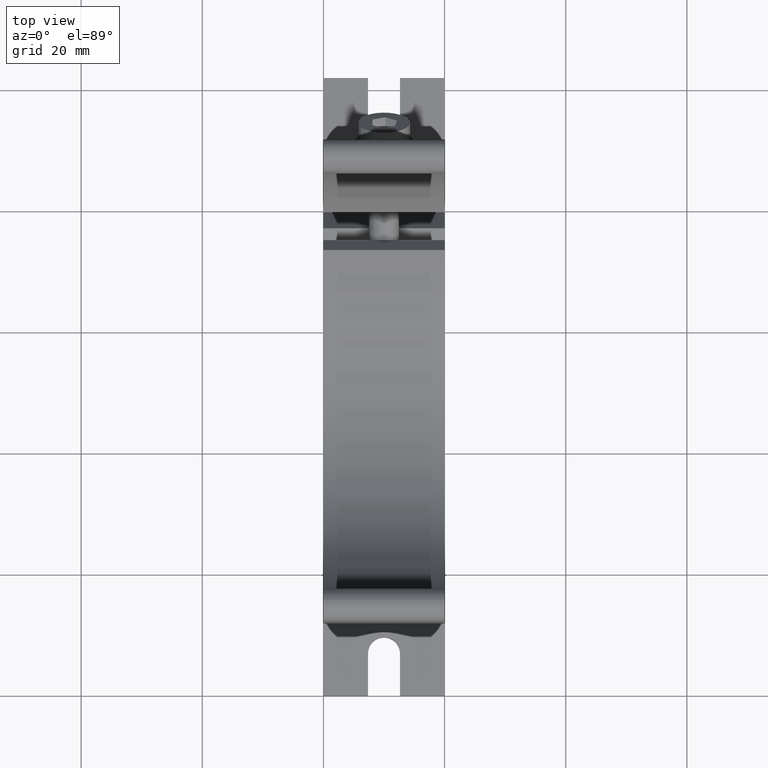
[diagram: clean part render]
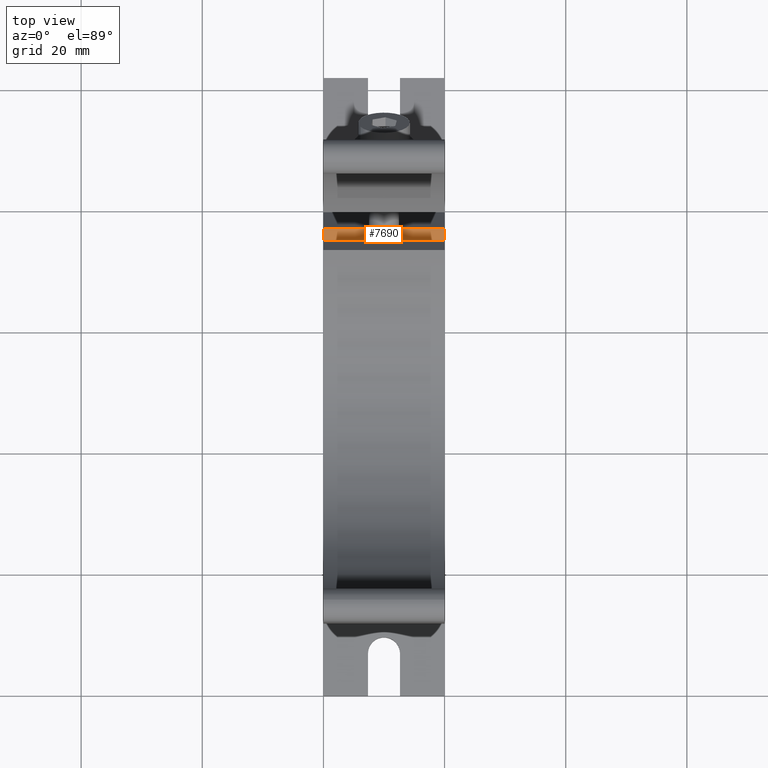
[diagram: same view with one face highlighted and labeled with its STEP entity id]
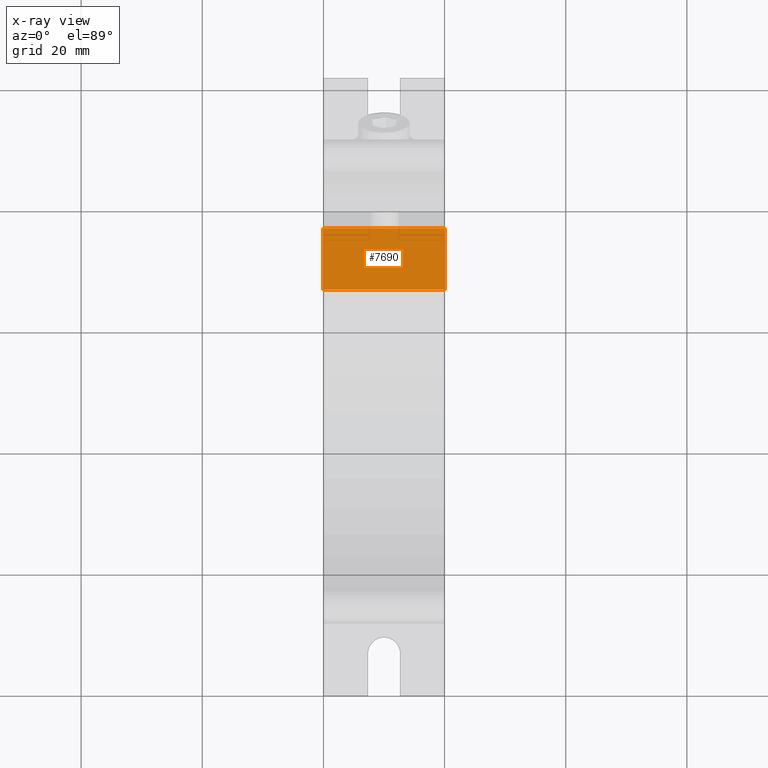
[diagram: x-ray of the same camera — body ghosted, the highlighted face saturated]
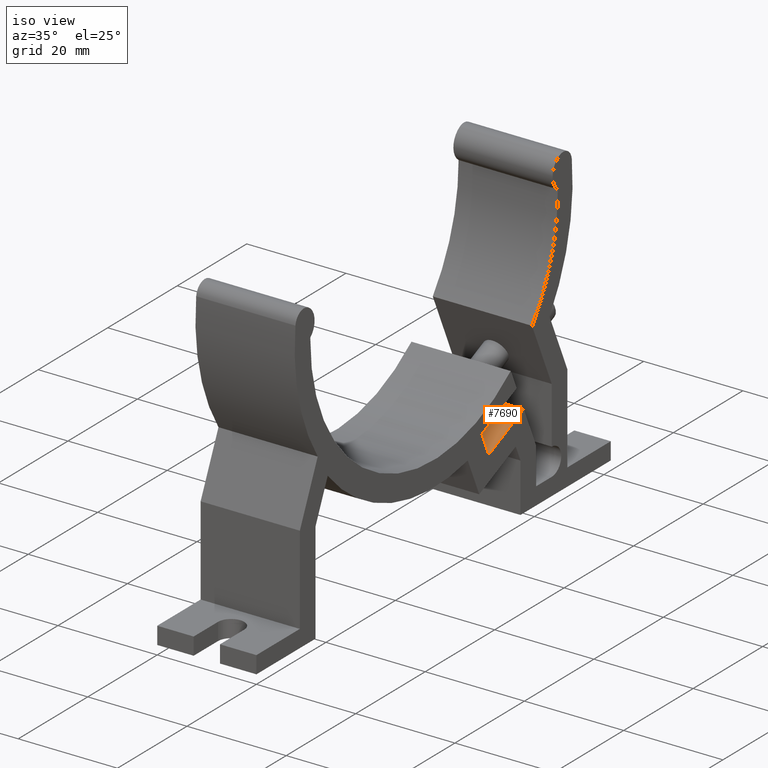
[diagram: same view with one face highlighted and labeled with its STEP entity id]
A machine part, top view. The second image highlights one B-rep face of the part: STEP entity #7690.
The next image is the same camera in x-ray: the body ghosted, the highlighted face saturated — about 0% of this face is hidden behind the body in this view.
A second angle (iso view) of the same face is appended — the face is thin or edge-on in the first view.
In plain terms, the highlighted planar face has unit normal (0, -0.4067, 0.9135).
Its self-contained STEP definition (entity closure, byte-faithful):
#1150=CARTESIAN_POINT('',(15.8659530585121,-40.5527006936047,0.));
#1160=DIRECTION('',(0.,0.,-1.));
#1170=VECTOR('',#1160,1.);
#1180=LINE('',#1150,#1170);
#1190=CARTESIAN_POINT('',(15.8659530585121,-40.5527006936047,20.1));
#1200=VERTEX_POINT('',#1190);
#1210=CARTESIAN_POINT('',(15.8659530585121,-40.5527006936047,0.1));
#1220=VERTEX_POINT('',#1210);
#1230=EDGE_CURVE('',#1200,#1220,#1180,.T.);
#6160=CARTESIAN_POINT('',(25.9149530925807,-36.0785976197709,0.1));
#6170=VERTEX_POINT('',#6160);
#6200=CARTESIAN_POINT('',(0.,-47.6166781150129,0.1));
#6210=DIRECTION('',(-0.913545457642602,-0.406736643075797,0.));
#6220=VECTOR('',#6210,1.);
#6230=LINE('',#6200,#6220);
#6240=EDGE_CURVE('',#6170,#1220,#6230,.T.);
#6880=CARTESIAN_POINT('',(25.9149530925807,-36.0785976197709,20.1));
#6890=VERTEX_POINT('',#6880);
#6920=CARTESIAN_POINT('',(25.9149530925807,-36.0785976197709,0.));
#6930=DIRECTION('',(0.,0.,-1.));
#6940=VECTOR('',#6930,1.);
#6950=LINE('',#6920,#6940);
#6960=CARTESIAN_POINT('',(25.9149530925808,-36.0785976197711,10.1));
#6970=VERTEX_POINT('',#6960);
#6980=EDGE_CURVE('',#6890,#6970,#6950,.T.);
#7000=EDGE_CURVE('',#6970,#6170,#6950,.T.);
#7430=CARTESIAN_POINT('',(23.6207436691249,-37.1000454651986,20.1));
#7440=DIRECTION('',(-0.406736643075797,0.913545457642602,0.));
#7450=DIRECTION('',(-0.913545457642602,-0.406736643075797,0.));
#7460=AXIS2_PLACEMENT_3D('',#7430,#7440,#7450);
#7470=PLANE('',#7460);
#7480=ORIENTED_EDGE('',*,*,#7000,.T.);
#7490=CARTESIAN_POINT('',(18.1498167026187,-39.5358590859154,10.1));
#7500=DIRECTION('',(-0.913545457642602,-0.406736643075799,
-8.32667268468867E-17));
#7510=VECTOR('',#7500,1.);
#7520=LINE('',#7490,#7510);
#7530=CARTESIAN_POINT('',(18.1498167026187,-39.5358590859154,10.1));
#7540=VERTEX_POINT('',#7530);
#7550=EDGE_CURVE('',#6970,#7540,#7520,.T.);
#7560=ORIENTED_EDGE('',*,*,#7550,.F.);
#7570=ORIENTED_EDGE('',*,*,#7550,.T.);
#7580=ORIENTED_EDGE('',*,*,#6980,.T.);
#7590=CARTESIAN_POINT('',(0.,-47.6166781150129,20.1));
#7600=DIRECTION('',(-0.913545457642602,-0.406736643075797,0.));
#7610=VECTOR('',#7600,1.);
#7620=LINE('',#7590,#7610);
#7630=EDGE_CURVE('',#6890,#1200,#7620,.T.);
#7640=ORIENTED_EDGE('',*,*,#7630,.F.);
#7650=ORIENTED_EDGE('',*,*,#1230,.F.);
#7660=ORIENTED_EDGE('',*,*,#6240,.T.);
#7670=EDGE_LOOP('',(#7660,#7650,#7640,#7580,#7570,#7560,#7480));
#7680=FACE_OUTER_BOUND('',#7670,.T.);
#7690=ADVANCED_FACE('',(#7680),#7470,.T.);